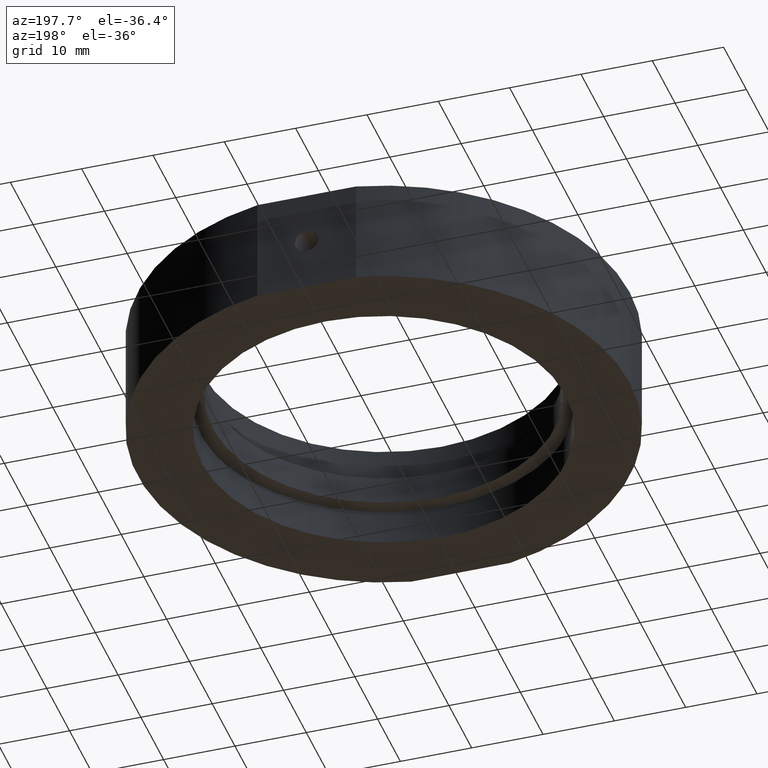
[diagram: clean part render]
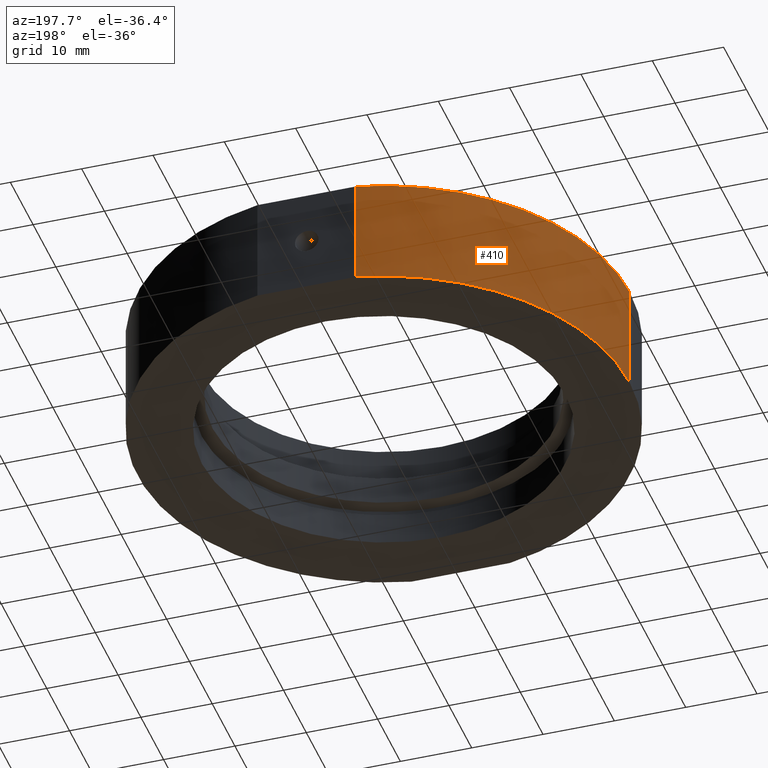
[diagram: same view with one face highlighted and labeled with its STEP entity id]
A machine part, auxiliary view. The second image highlights one B-rep face of the part: STEP entity #410.
In plain terms, the highlighted cylindrical surface (partial cylindrical patch) has radius 34.5 mm, axis along (-0, -0, -1).
Its self-contained STEP definition (entity closure, byte-faithful):
#46 = CIRCLE ( 'NONE', #336, 34.49999999999998600 ) ;
#52 = CARTESIAN_POINT ( 'NONE',  ( -34.49999999999997900, 0.0000000000000000000, 7.500000000000010700 ) ) ;
#68 = ORIENTED_EDGE ( 'NONE', *, *, #290, .F. ) ;
#69 = ORIENTED_EDGE ( 'NONE', *, *, #571, .F. ) ;
#80 = CARTESIAN_POINT ( 'NONE',  ( -6.914477565224999000, 33.79999999999999700, 7.500000000000000000 ) ) ;
#107 = DIRECTION ( 'NONE',  ( -1.000000000000000000, 0.0000000000000000000, 1.257045997084643400E-016 ) ) ;
#202 = VECTOR ( 'NONE', #466, 1000.000000000000000 ) ;
#208 = CARTESIAN_POINT ( 'NONE',  ( -6.914477565225033700, 33.79999999999999700, -7.499999999999995600 ) ) ;
#227 = DIRECTION ( 'NONE',  ( -1.000000000000000000, 0.0000000000000000000, 2.011273595335428800E-016 ) ) ;
#242 = CYLINDRICAL_SURFACE ( 'NONE', #244, 34.49999999999999300 ) ;
#244 = AXIS2_PLACEMENT_3D ( 'NONE', #310, #520, #227 ) ;
#252 = VERTEX_POINT ( 'NONE', #208 ) ;
#290 = EDGE_CURVE ( 'NONE', #801, #252, #667, .T. ) ;
#310 = CARTESIAN_POINT ( 'NONE',  ( 0.0000000000000000000, 0.0000000000000000000, -31.93906810035839800 ) ) ;
#321 = CARTESIAN_POINT ( 'NONE',  ( 4.829892851045829500E-015, 0.0000000000000000000, 7.500000000000007100 ) ) ;
#336 = AXIS2_PLACEMENT_3D ( 'NONE', #321, #840, #107 ) ;
#398 = LINE ( 'NONE', #688, #202 ) ;
#410 = ADVANCED_FACE ( 'NONE', ( #433 ), #242, .T. ) ;
#420 = CARTESIAN_POINT ( 'NONE',  ( -6.914477565225066500, 33.79999999999998300, -31.93906810035839800 ) ) ;
#433 = FACE_OUTER_BOUND ( 'NONE', #669, .T. ) ;
#450 = DIRECTION ( 'NONE',  ( -1.000000000000000000, 0.0000000000000000000, 1.257045997084642900E-016 ) ) ;
#466 = DIRECTION ( 'NONE',  ( -1.224646799147350500E-016, -0.0000000000000000000, -1.000000000000000000 ) ) ;
#491 = CARTESIAN_POINT ( 'NONE',  ( -34.50000000000000000, 0.0000000000000000000, -7.499999999999992000 ) ) ;
#512 = VECTOR ( 'NONE', #819, 1000.000000000000000 ) ;
#516 = CARTESIAN_POINT ( 'NONE',  ( 2.992922652324803100E-015, 0.0000000000000000000, -7.499999999999996400 ) ) ;
#518 = EDGE_CURVE ( 'NONE', #834, #939, #46, .T. ) ;
#520 = DIRECTION ( 'NONE',  ( -1.224646799147350500E-016, -0.0000000000000000000, -1.000000000000000000 ) ) ;
#526 = DIRECTION ( 'NONE',  ( -1.224646799147350500E-016, -0.0000000000000000000, -1.000000000000000000 ) ) ;
#549 = ORIENTED_EDGE ( 'NONE', *, *, #518, .T. ) ;
#571 = EDGE_CURVE ( 'NONE', #834, #801, #398, .T. ) ;
#610 = LINE ( 'NONE', #420, #512 ) ;
#632 = AXIS2_PLACEMENT_3D ( 'NONE', #516, #526, #450 ) ;
#667 = CIRCLE ( 'NONE', #632, 34.50000000000000000 ) ;
#669 = EDGE_LOOP ( 'NONE', ( #69, #549, #824, #68 ) ) ;
#688 = CARTESIAN_POINT ( 'NONE',  ( -34.49999999999999300, 0.0000000000000000000, -31.93906810035839100 ) ) ;
#801 = VERTEX_POINT ( 'NONE', #491 ) ;
#819 = DIRECTION ( 'NONE',  ( -1.224646799147350500E-016, -0.0000000000000000000, -1.000000000000000000 ) ) ;
#824 = ORIENTED_EDGE ( 'NONE', *, *, #836, .T. ) ;
#834 = VERTEX_POINT ( 'NONE', #52 ) ;
#836 = EDGE_CURVE ( 'NONE', #939, #252, #610, .T. ) ;
#840 = DIRECTION ( 'NONE',  ( -1.224646799147350500E-016, -0.0000000000000000000, -1.000000000000000000 ) ) ;
#939 = VERTEX_POINT ( 'NONE', #80 ) ;